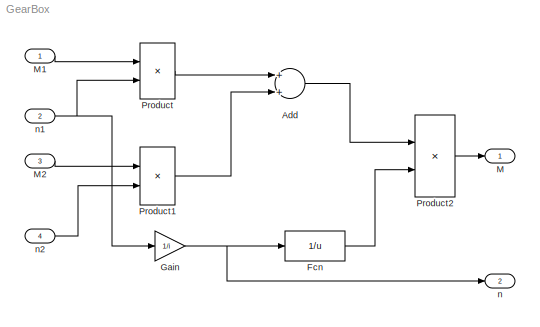
MODEL GearBox
KIND model
BLOCK [Sum] Add
  InputSameDT = off
  OutDataTypeStr = Inherit: Inherit via internal rule
  Ports = [2, 1]
  SID = 10
  SaturateOnIntegerOverflow = off
BLOCK [Fcn] Fcn
  Expr = 1/u
  SID = 11
BLOCK [Gain] Gain
  Gain = 1/i
  OutDataTypeStr = Inherit: Inherit via internal rule
  ParamDataTypeStr = Inherit: Inherit via internal rule
  SID = 12
  SaturateOnIntegerOverflow = off
BLOCK [Outport] M
  IconDisplay = Port number
  SID = 5
BLOCK [Inport] M1
  IconDisplay = Port number
  SID = 1
BLOCK [Inport] M2
  IconDisplay = Port number
  Port = 3
  SID = 3
BLOCK [Product] Product
  InputSameDT = off
  OutDataTypeStr = Inherit: Inherit via internal rule
  Ports = [2, 1]
  RndMeth = Floor
  SID = 7
  SaturateOnIntegerOverflow = off
BLOCK [Product] Product1
  InputSameDT = off
  OutDataTypeStr = Inherit: Inherit via internal rule
  Ports = [2, 1]
  RndMeth = Floor
  SID = 8
  SaturateOnIntegerOverflow = off
BLOCK [Product] Product2
  InputSameDT = off
  OutDataTypeStr = Inherit: Inherit via internal rule
  Ports = [2, 1]
  RndMeth = Floor
  SID = 9
  SaturateOnIntegerOverflow = off
BLOCK [Outport] n
  IconDisplay = Port number
  Port = 2
  SID = 6
BLOCK [Inport] n1
  IconDisplay = Port number
  Port = 2
  SID = 2
BLOCK [Inport] n2
  IconDisplay = Port number
  Port = 4
  SID = 4
ANNOTATION (root): \n \n
LINE Add:1 -> Product2:1
LINE Fcn:1 -> Product2:2
NET Gain:1 -> Fcn:1, n:1
LINE M1:1 -> Product:1
LINE M2:1 -> Product1:1
LINE Product1:1 -> Add:2
LINE Product2:1 -> M:1
LINE Product:1 -> Add:1
NET n1:1 -> Gain:1, Product:2
LINE n2:1 -> Product1:2
note: NET lines group one-source signal fan-out (src -> all destinations, sorted); 1:1 wires keep LINE
